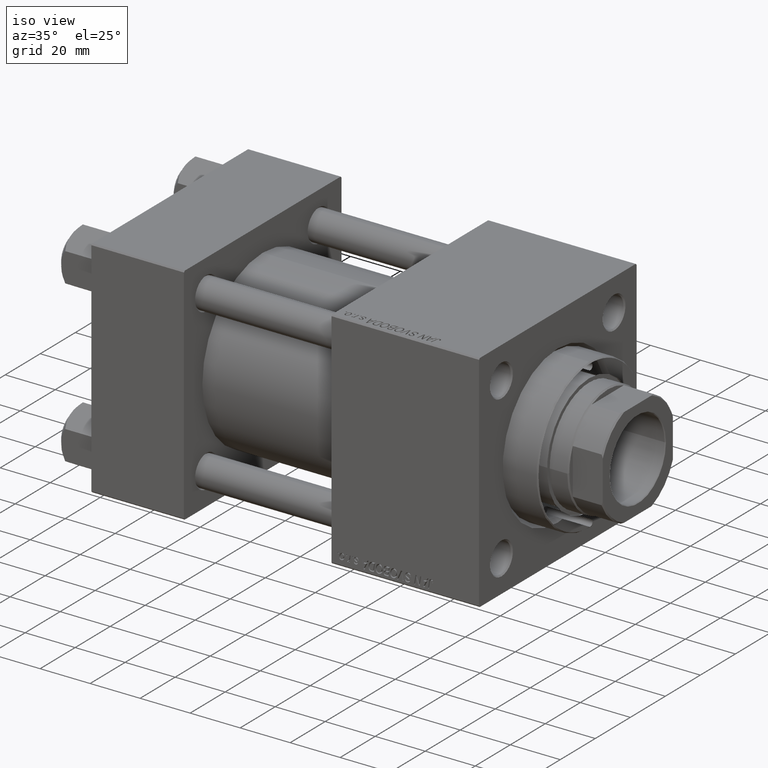
[diagram: clean part render]
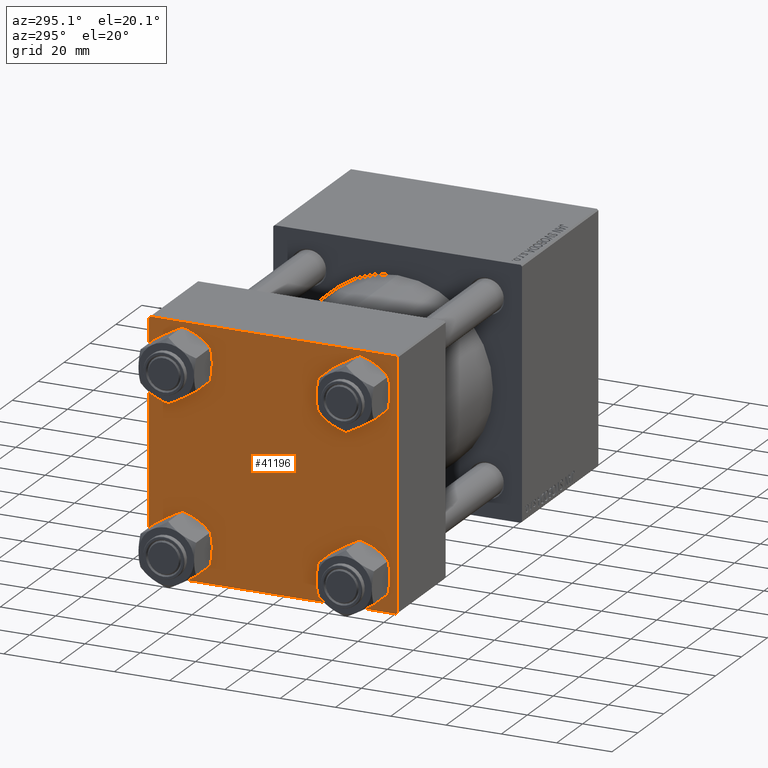
[diagram: tour spotlight — one face highlighted and labeled with its STEP entity id]
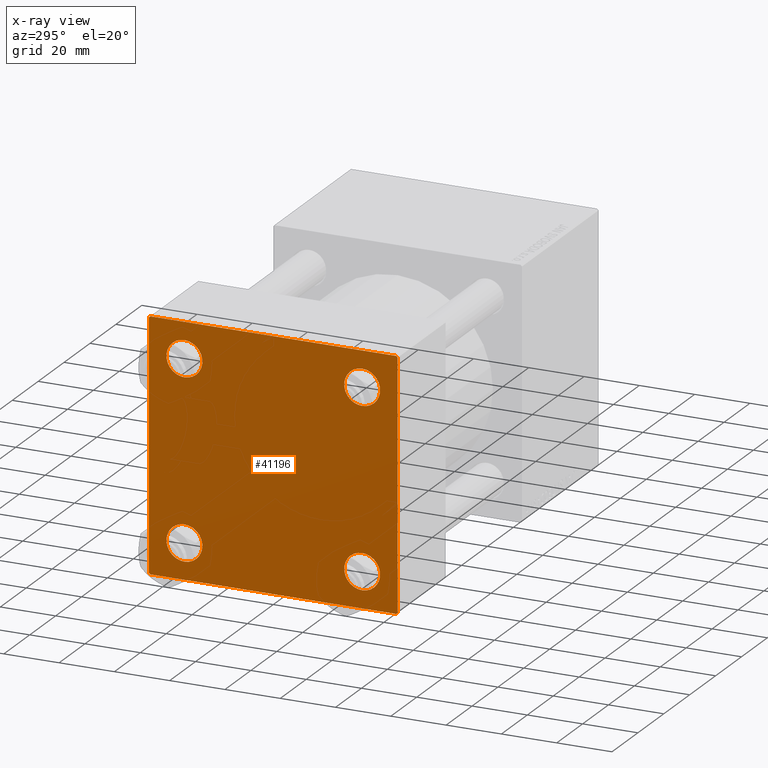
[diagram: x-ray of the same camera — body ghosted, this tour face saturated]
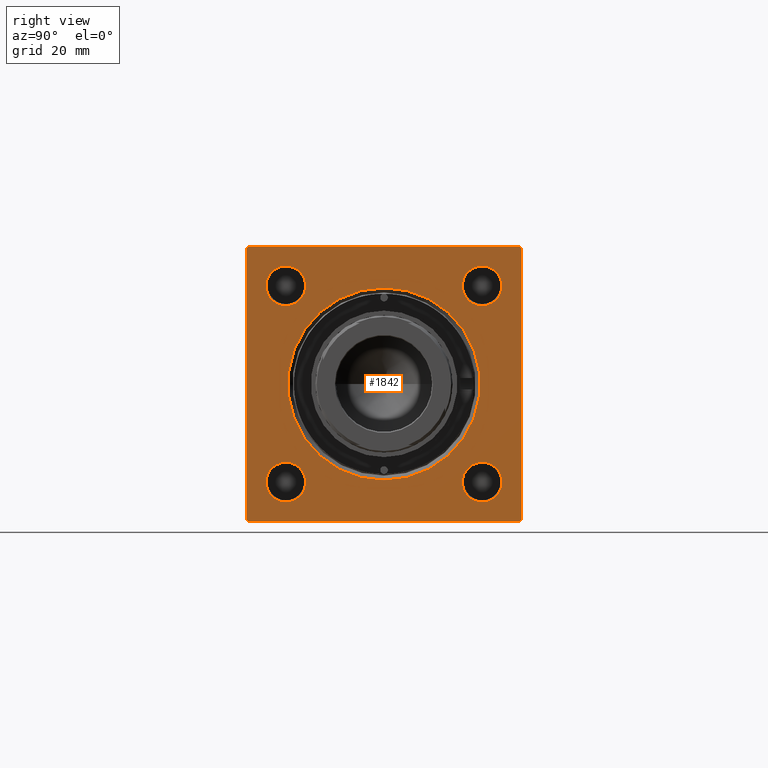
[diagram: tour spotlight — one face highlighted and labeled with its STEP entity id]
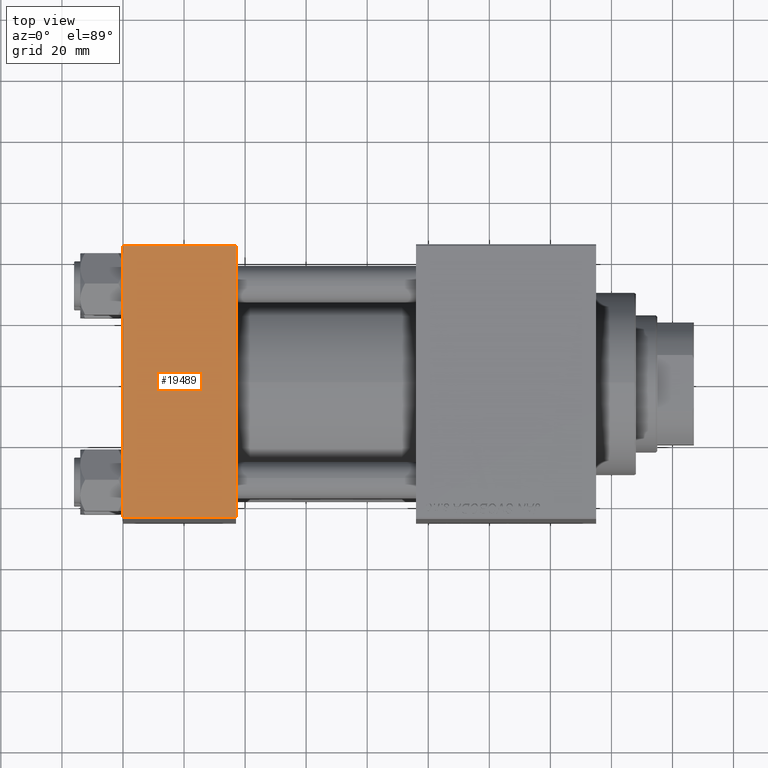
[diagram: tour spotlight — one face highlighted and labeled with its STEP entity id]
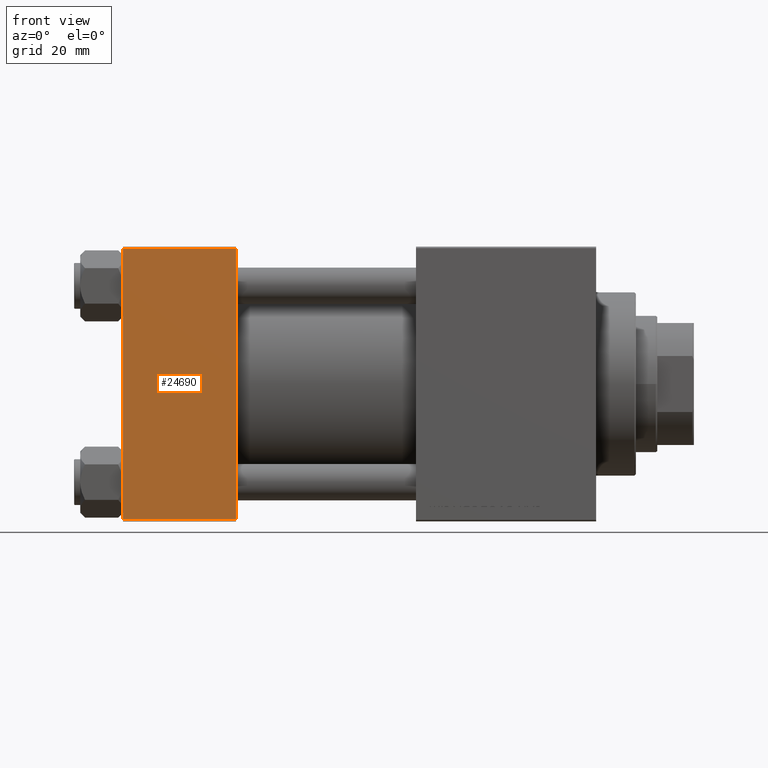
[diagram: tour spotlight — one face highlighted and labeled with its STEP entity id]
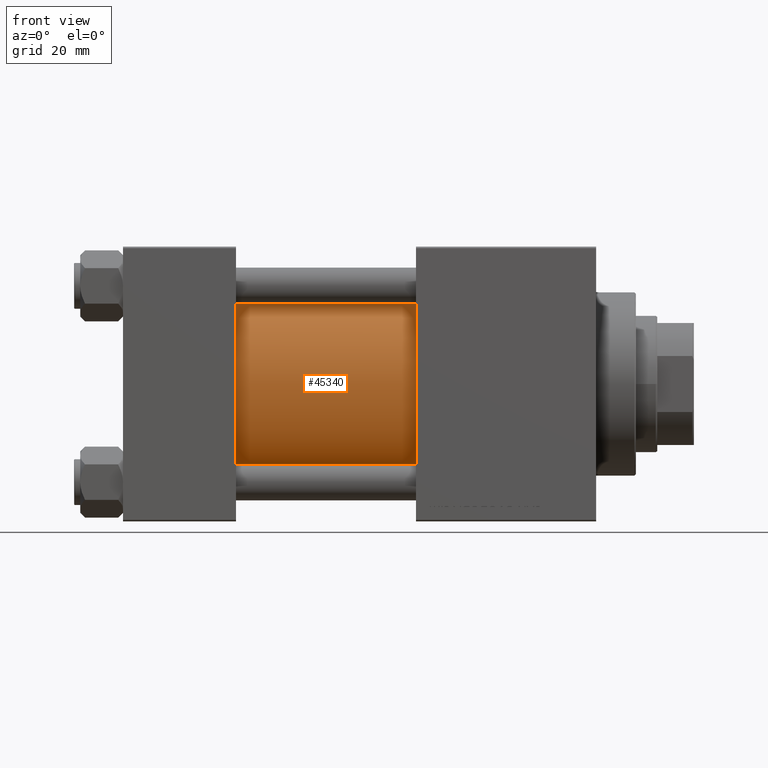
[diagram: tour spotlight — one face highlighted and labeled with its STEP entity id]
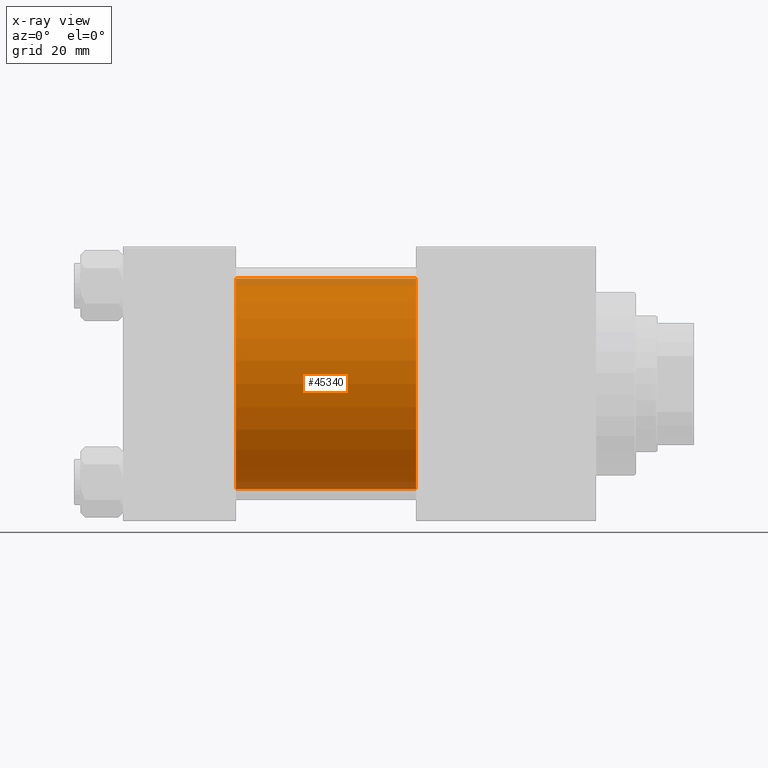
[diagram: x-ray of the same camera — body ghosted, this tour face saturated]
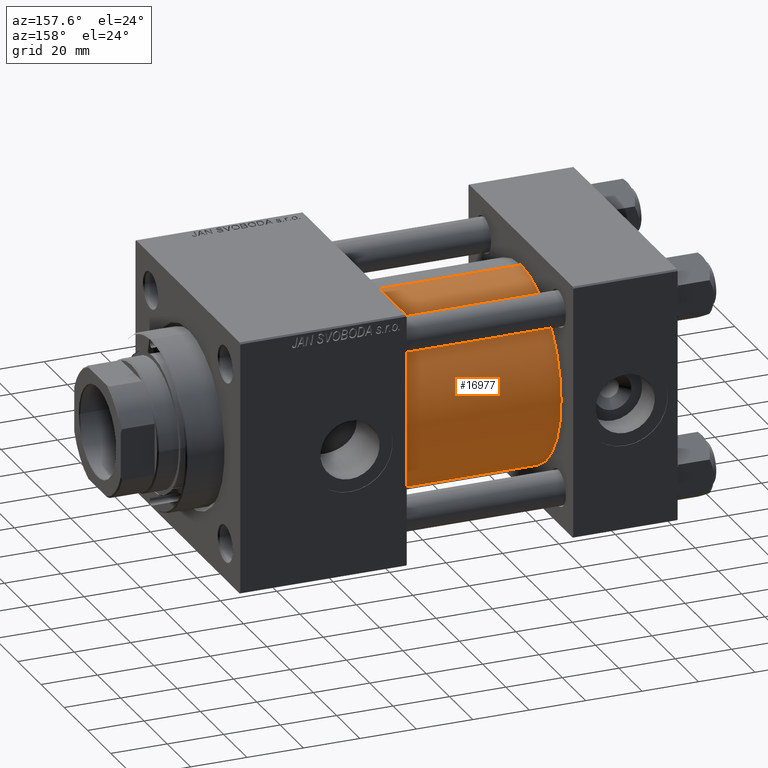
[diagram: tour spotlight — one face highlighted and labeled with its STEP entity id]
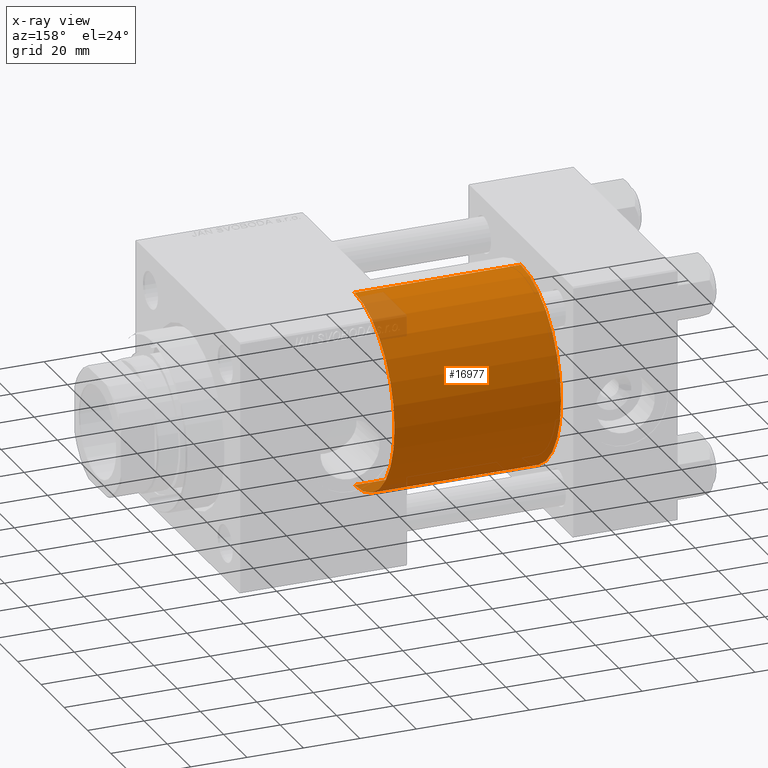
[diagram: x-ray of the same camera — body ghosted, this tour face saturated]
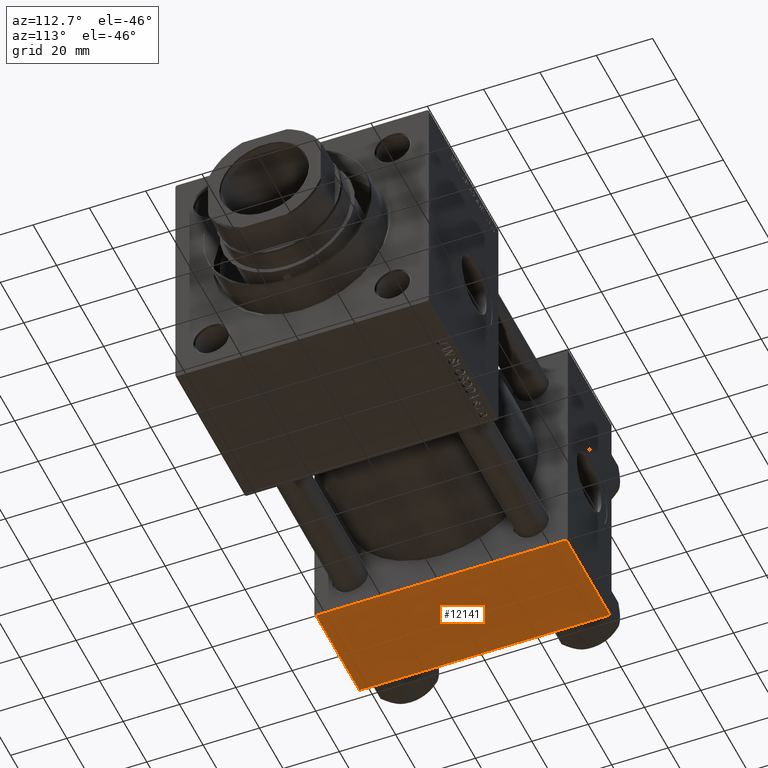
[diagram: tour spotlight — one face highlighted and labeled with its STEP entity id]
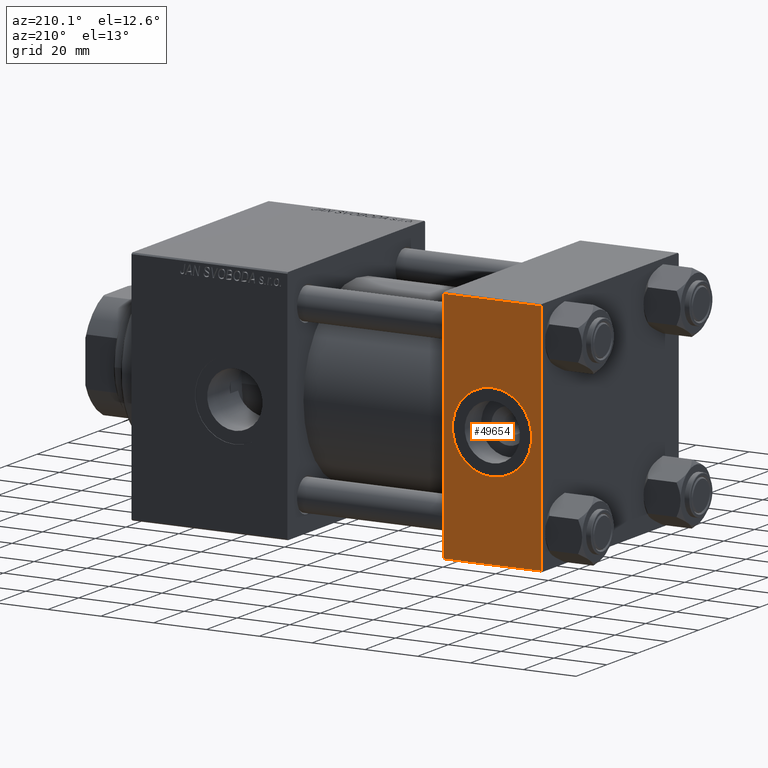
[diagram: tour spotlight — one face highlighted and labeled with its STEP entity id]
A machine part: a face-by-face anatomy tour. The part has 1152 B-rep faces; the first image is the clean iso view, then the 8 largest visible faces are spotlighted one at a time (largest first), each with its STEP entity span.

Face 1 — auxiliary view, entity #41196. An x-ray twin of the same camera follows (body ghosted, this face saturated) — the face is partly hidden behind the body. In plain terms, the highlighted planar face has unit normal (-1, 0, 0).
Definition (entity closure, byte-faithful):
#23 = LINE ( 'NONE', #47331, #1268 ) ;
#238 = EDGE_CURVE ( 'NONE', #5922, #40288, #35894, .T. ) ;
#1268 = VECTOR ( 'NONE', #12478, 1000.000000000000114 ) ;
#1618 = CARTESIAN_POINT ( 'NONE',  ( 0.000000000000000000, 32.14999999999999147, 38.64999999999999147 ) ) ;
#1627 = CARTESIAN_POINT ( 'NONE',  ( 0.000000000000000000, -32.14999999999997726, 32.15000000000001279 ) ) ;
#1804 = CIRCLE ( 'NONE', #6666, 6.499999999999977796 ) ;
#2002 = ORIENTED_EDGE ( 'NONE', *, *, #30368, .T. ) ;
#2063 = DIRECTION ( 'NONE',  ( 0.000000000000000000, -1.000000000000000000, -1.541976423090495387E-16 ) ) ;
#2288 = CIRCLE ( 'NONE', #23413, 6.499999999999977796 ) ;
#2961 = DIRECTION ( 'NONE',  ( 1.000000000000000000, -0.000000000000000000, 0.000000000000000000 ) ) ;
#3282 = ORIENTED_EDGE ( 'NONE', *, *, #36346, .T. ) ;
#3344 = AXIS2_PLACEMENT_3D ( 'NONE', #23732, #31603, #4400 ) ;
#3585 = DIRECTION ( 'NONE',  ( 0.000000000000000000, 0.000000000000000000, 1.000000000000000000 ) ) ;
#4400 = DIRECTION ( 'NONE',  ( 0.000000000000000000, 0.000000000000000000, 1.000000000000000000 ) ) ;
#4701 = EDGE_LOOP ( 'NONE', ( #2002, #26493 ) ) ;
#4949 = VERTEX_POINT ( 'NONE', #25581 ) ;
#5440 = VECTOR ( 'NONE', #21656, 1000.000000000000114 ) ;
#5753 = CIRCLE ( 'NONE', #6547, 6.500000000000019540 ) ;
#5820 = CARTESIAN_POINT ( 'NONE',  ( 0.000000000000000000, -45.00000000000000711, 45.00000000000000000 ) ) ;
#5877 = VERTEX_POINT ( 'NONE', #13332 ) ;
#5899 = CARTESIAN_POINT ( 'NONE',  ( 0.000000000000000000, 44.74999999999998579, -44.74999999999998579 ) ) ;
#5922 = VERTEX_POINT ( 'NONE', #47690 ) ;
#6356 = ORIENTED_EDGE ( 'NONE', *, *, #14846, .T. ) ;
#6547 = AXIS2_PLACEMENT_3D ( 'NONE', #1627, #14066, #17125 ) ;
#6666 = AXIS2_PLACEMENT_3D ( 'NONE', #19088, #30300, #3585 ) ;
#7081 = CARTESIAN_POINT ( 'NONE',  ( 0.000000000000000000, 44.49999999999998579, 45.00000000000001421 ) ) ;
#7195 = DIRECTION ( 'NONE',  ( -0.000000000000000000, 0.000000000000000000, 1.000000000000000000 ) ) ;
#7771 = ORIENTED_EDGE ( 'NONE', *, *, #47663, .T. ) ;
#8069 = DIRECTION ( 'NONE',  ( 1.000000000000000000, -0.000000000000000000, 0.000000000000000000 ) ) ;
#8326 = DIRECTION ( 'NONE',  ( 0.000000000000000000, 0.7071067811865474617, -0.7071067811865474617 ) ) ;
#8570 = EDGE_LOOP ( 'NONE', ( #3282, #43296 ) ) ;
#8891 = EDGE_CURVE ( 'NONE', #40239, #25636, #21558, .T. ) ;
#9794 = VERTEX_POINT ( 'NONE', #7081 ) ;
#11349 = EDGE_CURVE ( 'NONE', #28190, #20135, #17259, .T. ) ;
#11554 = VECTOR ( 'NONE', #17316, 1000.000000000000000 ) ;
#11996 = VECTOR ( 'NONE', #25651, 1000.000000000000000 ) ;
#12119 = VERTEX_POINT ( 'NONE', #46119 ) ;
#12478 = DIRECTION ( 'NONE',  ( 0.000000000000000000, -0.7071067811865474617, 0.7071067811865474617 ) ) ;
#12865 = CARTESIAN_POINT ( 'NONE',  ( 0.000000000000000000, 44.99999999999998579, 44.50000000000001421 ) ) ;
#12870 = CARTESIAN_POINT ( 'NONE',  ( 0.000000000000000000, -32.14999999999997726, 32.15000000000001279 ) ) ;
#12890 = CARTESIAN_POINT ( 'NONE',  ( 0.000000000000000000, 44.74999999999999289, 44.74999999999999289 ) ) ;
#13332 = CARTESIAN_POINT ( 'NONE',  ( 0.000000000000000000, 32.14999999999999147, -25.65000000000002700 ) ) ;
#14066 = DIRECTION ( 'NONE',  ( 1.000000000000000000, -0.000000000000000000, 0.000000000000000000 ) ) ;
#14464 = CARTESIAN_POINT ( 'NONE',  ( 0.000000000000000000, -32.14999999999997726, -38.64999999999999147 ) ) ;
#14637 = AXIS2_PLACEMENT_3D ( 'NONE', #42955, #38378, #27170 ) ;
#14831 = FACE_BOUND ( 'NONE', #26919, .T. ) ;
#14846 = EDGE_CURVE ( 'NONE', #28190, #39656, #40257, .T. ) ;
#16906 = CARTESIAN_POINT ( 'NONE',  ( 0.000000000000000000, -32.14999999999997726, -32.15000000000001279 ) ) ;
#17061 = LINE ( 'NONE', #44049, #11554 ) ;
#17125 = DIRECTION ( 'NONE',  ( 0.000000000000000000, 0.000000000000000000, 1.000000000000000000 ) ) ;
#17259 = LINE ( 'NONE', #5820, #11996 ) ;
#17311 = CARTESIAN_POINT ( 'NONE',  ( 0.000000000000000000, 44.99999999999998579, 45.00000000000001421 ) ) ;
#17316 = DIRECTION ( 'NONE',  ( 0.000000000000000000, 0.000000000000000000, -1.000000000000000000 ) ) ;
#17384 = EDGE_CURVE ( 'NONE', #26082, #33392, #2288, .T. ) ;
#17581 = DIRECTION ( 'NONE',  ( -0.000000000000000000, -0.7071067811865474617, -0.7071067811865474617 ) ) ;
#17993 = AXIS2_PLACEMENT_3D ( 'NONE', #12870, #27889, #46978 ) ;
#19088 = CARTESIAN_POINT ( 'NONE',  ( 0.000000000000000000, 32.14999999999999147, -32.15000000000000568 ) ) ;
#19523 = CARTESIAN_POINT ( 'NONE',  ( 0.000000000000000000, 32.14999999999999147, 25.65000000000002700 ) ) ;
#19659 = DIRECTION ( 'NONE',  ( -1.000000000000000000, 0.000000000000000000, -0.000000000000000000 ) ) ;
#19743 = EDGE_CURVE ( 'NONE', #9794, #39656, #24940, .T. ) ;
#20135 = VERTEX_POINT ( 'NONE', #49419 ) ;
#20654 = CARTESIAN_POINT ( 'NONE',  ( -0.000000000000000000, -44.75000000000029843, 44.74999999999967315 ) ) ;
#20731 = AXIS2_PLACEMENT_3D ( 'NONE', #37568, #2961, #23030 ) ;
#20757 = EDGE_LOOP ( 'NONE', ( #7771, #39555, #27745, #37405, #28895, #6356, #22184, #30505 ) ) ;
#21558 = CIRCLE ( 'NONE', #20731, 6.499999999999977796 ) ;
#21656 = DIRECTION ( 'NONE',  ( -0.000000000000000000, 0.7071067811865425767, 0.7071067811865524577 ) ) ;
#21720 = DIRECTION ( 'NONE',  ( 1.000000000000000000, -0.000000000000000000, 0.000000000000000000 ) ) ;
#22184 = ORIENTED_EDGE ( 'NONE', *, *, #19743, .F. ) ;
#22963 = PLANE ( 'NONE',  #26553 ) ;
#23027 = LINE ( 'NONE', #26829, #47523 ) ;
#23030 = DIRECTION ( 'NONE',  ( 0.000000000000000000, 0.000000000000000000, 1.000000000000000000 ) ) ;
#23413 = AXIS2_PLACEMENT_3D ( 'NONE', #16906, #21720, #44135 ) ;
#23581 = DIRECTION ( 'NONE',  ( 0.000000000000000000, 0.000000000000000000, 1.000000000000000000 ) ) ;
#23732 = CARTESIAN_POINT ( 'NONE',  ( 0.000000000000000000, -32.14999999999997726, -32.15000000000001279 ) ) ;
#24447 = VERTEX_POINT ( 'NONE', #12865 ) ;
#24940 = LINE ( 'NONE', #17311, #34011 ) ;
#25543 = VECTOR ( 'NONE', #17581, 1000.000000000000114 ) ;
#25581 = CARTESIAN_POINT ( 'NONE',  ( 0.000000000000000000, 44.99999999999998579, -44.49999999999995737 ) ) ;
#25636 = VERTEX_POINT ( 'NONE', #1618 ) ;
#25651 = DIRECTION ( 'NONE',  ( 0.000000000000000000, 7.709882115452476934E-17, -1.000000000000000000 ) ) ;
#26082 = VERTEX_POINT ( 'NONE', #30402 ) ;
#26493 = ORIENTED_EDGE ( 'NONE', *, *, #42587, .T. ) ;
#26553 = AXIS2_PLACEMENT_3D ( 'NONE', #38492, #19659, #7195 ) ;
#26829 = CARTESIAN_POINT ( 'NONE',  ( 0.000000000000000000, 44.99999999999998579, -44.99999999999998579 ) ) ;
#26919 = EDGE_LOOP ( 'NONE', ( #42619, #34378 ) ) ;
#27170 = DIRECTION ( 'NONE',  ( 0.000000000000000000, 0.000000000000000000, 1.000000000000000000 ) ) ;
#27543 = FACE_BOUND ( 'NONE', #33829, .T. ) ;
#27745 = ORIENTED_EDGE ( 'NONE', *, *, #37240, .T. ) ;
#27889 = DIRECTION ( 'NONE',  ( 1.000000000000000000, -0.000000000000000000, 0.000000000000000000 ) ) ;
#28190 = VERTEX_POINT ( 'NONE', #48331 ) ;
#28442 = CIRCLE ( 'NONE', #14637, 6.499999999999977796 ) ;
#28895 = ORIENTED_EDGE ( 'NONE', *, *, #11349, .F. ) ;
#30300 = DIRECTION ( 'NONE',  ( 1.000000000000000000, -0.000000000000000000, 0.000000000000000000 ) ) ;
#30368 = EDGE_CURVE ( 'NONE', #5877, #37884, #1804, .T. ) ;
#30402 = CARTESIAN_POINT ( 'NONE',  ( 0.000000000000000000, -32.14999999999997726, -25.65000000000003411 ) ) ;
#30505 = ORIENTED_EDGE ( 'NONE', *, *, #44900, .T. ) ;
#31119 = FACE_BOUND ( 'NONE', #8570, .T. ) ;
#31603 = DIRECTION ( 'NONE',  ( 1.000000000000000000, -0.000000000000000000, 0.000000000000000000 ) ) ;
#32415 = ORIENTED_EDGE ( 'NONE', *, *, #238, .T. ) ;
#33392 = VERTEX_POINT ( 'NONE', #14464 ) ;
#33829 = EDGE_LOOP ( 'NONE', ( #47351, #32415 ) ) ;
#34011 = VECTOR ( 'NONE', #2063, 1000.000000000000000 ) ;
#34378 = ORIENTED_EDGE ( 'NONE', *, *, #45483, .T. ) ;
#35104 = CARTESIAN_POINT ( 'NONE',  ( 0.000000000000000000, 32.14999999999999147, -38.64999999999998437 ) ) ;
#35252 = CARTESIAN_POINT ( 'NONE',  ( 0.000000000000000000, 44.49999999999998579, -44.99999999999998579 ) ) ;
#35286 = CIRCLE ( 'NONE', #36915, 6.499999999999977796 ) ;
#35894 = CIRCLE ( 'NONE', #17993, 6.500000000000019540 ) ;
#36346 = EDGE_CURVE ( 'NONE', #25636, #40239, #35286, .T. ) ;
#36768 = EDGE_CURVE ( 'NONE', #4949, #49403, #40750, .T. ) ;
#36915 = AXIS2_PLACEMENT_3D ( 'NONE', #40129, #8069, #23581 ) ;
#37235 = CARTESIAN_POINT ( 'NONE',  ( 0.000000000000000000, -32.14999999999997726, 38.65000000000003411 ) ) ;
#37240 = EDGE_CURVE ( 'NONE', #49403, #12119, #23027, .T. ) ;
#37405 = ORIENTED_EDGE ( 'NONE', *, *, #39920, .T. ) ;
#37568 = CARTESIAN_POINT ( 'NONE',  ( 0.000000000000000000, 32.14999999999999147, 32.15000000000000568 ) ) ;
#37884 = VERTEX_POINT ( 'NONE', #35104 ) ;
#38378 = DIRECTION ( 'NONE',  ( 1.000000000000000000, -0.000000000000000000, 0.000000000000000000 ) ) ;
#38492 = CARTESIAN_POINT ( 'NONE',  ( 0.000000000000000000, 0.000000000000000000, 0.000000000000000000 ) ) ;
#39508 = CARTESIAN_POINT ( 'NONE',  ( 0.000000000000000000, -44.49999999999995737, 45.00000000000000000 ) ) ;
#39555 = ORIENTED_EDGE ( 'NONE', *, *, #36768, .T. ) ;
#39656 = VERTEX_POINT ( 'NONE', #39508 ) ;
#39920 = EDGE_CURVE ( 'NONE', #12119, #20135, #23, .T. ) ;
#40129 = CARTESIAN_POINT ( 'NONE',  ( 0.000000000000000000, 32.14999999999999147, 32.15000000000000568 ) ) ;
#40239 = VERTEX_POINT ( 'NONE', #19523 ) ;
#40257 = LINE ( 'NONE', #20654, #5440 ) ;
#40288 = VERTEX_POINT ( 'NONE', #37235 ) ;
#40750 = LINE ( 'NONE', #5899, #25543 ) ;
#41196 = ADVANCED_FACE ( 'NONE', ( #27543, #14831, #42304, #31119, #49941 ), #22963, .T. ) ;
#42304 = FACE_BOUND ( 'NONE', #4701, .T. ) ;
#42374 = DIRECTION ( 'NONE',  ( 0.000000000000000000, -1.000000000000000000, -1.541976423090495633E-16 ) ) ;
#42587 = EDGE_CURVE ( 'NONE', #37884, #5877, #28442, .T. ) ;
#42619 = ORIENTED_EDGE ( 'NONE', *, *, #17384, .T. ) ;
#42955 = CARTESIAN_POINT ( 'NONE',  ( 0.000000000000000000, 32.14999999999999147, -32.15000000000000568 ) ) ;
#43160 = VECTOR ( 'NONE', #8326, 1000.000000000000114 ) ;
#43181 = LINE ( 'NONE', #12890, #43160 ) ;
#43296 = ORIENTED_EDGE ( 'NONE', *, *, #8891, .T. ) ;
#44049 = CARTESIAN_POINT ( 'NONE',  ( 0.000000000000000000, 44.99999999999998579, 45.00000000000001421 ) ) ;
#44135 = DIRECTION ( 'NONE',  ( 0.000000000000000000, 0.000000000000000000, 1.000000000000000000 ) ) ;
#44269 = EDGE_CURVE ( 'NONE', #40288, #5922, #5753, .T. ) ;
#44900 = EDGE_CURVE ( 'NONE', #9794, #24447, #43181, .T. ) ;
#45483 = EDGE_CURVE ( 'NONE', #33392, #26082, #45589, .T. ) ;
#45589 = CIRCLE ( 'NONE', #3344, 6.499999999999977796 ) ;
#46119 = CARTESIAN_POINT ( 'NONE',  ( 0.000000000000000000, -44.49999999999995737, -45.00000000000000000 ) ) ;
#46978 = DIRECTION ( 'NONE',  ( 0.000000000000000000, 0.000000000000000000, 1.000000000000000000 ) ) ;
#47331 = CARTESIAN_POINT ( 'NONE',  ( 0.000000000000000000, -44.74999999999998579, -44.74999999999998579 ) ) ;
#47351 = ORIENTED_EDGE ( 'NONE', *, *, #44269, .T. ) ;
#47523 = VECTOR ( 'NONE', #42374, 1000.000000000000000 ) ;
#47663 = EDGE_CURVE ( 'NONE', #24447, #4949, #17061, .T. ) ;
#47690 = CARTESIAN_POINT ( 'NONE',  ( 0.000000000000000000, -32.14999999999997726, 25.64999999999999147 ) ) ;
#48331 = CARTESIAN_POINT ( 'NONE',  ( 0.000000000000000000, -45.00000000000000711, 44.49999999999997158 ) ) ;
#49403 = VERTEX_POINT ( 'NONE', #35252 ) ;
#49419 = CARTESIAN_POINT ( 'NONE',  ( 0.000000000000000000, -45.00000000000000000, -44.49999999999995737 ) ) ;
#49941 = FACE_OUTER_BOUND ( 'NONE', #20757, .T. ) ;

Face 2 — right view, entity #1842. In plain terms, the highlighted planar face has unit normal (-1, 0, 0).
Definition (entity closure, byte-faithful):
#251 = VERTEX_POINT ( 'NONE', #31693 ) ;
#911 = CIRCLE ( 'NONE', #9815, 6.500000000000033751 ) ;
#1021 = AXIS2_PLACEMENT_3D ( 'NONE', #27492, #11735, #23422 ) ;
#1131 = VERTEX_POINT ( 'NONE', #8577 ) ;
#1674 = LINE ( 'NONE', #16681, #27752 ) ;
#1842 = ADVANCED_FACE ( 'NONE', ( #32632, #32142, #47900, #36463, #13298, #39531 ), #4674, .F. ) ;
#2140 = LINE ( 'NONE', #10770, #20907 ) ;
#2641 = CARTESIAN_POINT ( 'NONE',  ( 155.0000000000000000, 32.14999999999999147, 25.64999999999997726 ) ) ;
#3061 = VERTEX_POINT ( 'NONE', #18318 ) ;
#3217 = LINE ( 'NONE', #14419, #6417 ) ;
#3336 = DIRECTION ( 'NONE',  ( -1.000000000000000000, -0.000000000000000000, -0.000000000000000000 ) ) ;
#3640 = CARTESIAN_POINT ( 'NONE',  ( 155.0000000000000000, 32.14999999999999147, -38.65000000000004832 ) ) ;
#4011 = DIRECTION ( 'NONE',  ( 0.000000000000000000, 0.000000000000000000, 1.000000000000000000 ) ) ;
#4155 = AXIS2_PLACEMENT_3D ( 'NONE', #40063, #9016, #24530 ) ;
#4674 = PLANE ( 'NONE',  #42404 ) ;
#4840 = CARTESIAN_POINT ( 'NONE',  ( 155.0000000000000000, 44.50000000000001421, -45.00000000000000000 ) ) ;
#5059 = EDGE_LOOP ( 'NONE', ( #29821, #46744 ) ) ;
#5180 = CARTESIAN_POINT ( 'NONE',  ( 155.0000000000000000, 0.000000000000000000, 0.000000000000000000 ) ) ;
#5501 = CARTESIAN_POINT ( 'NONE',  ( 155.0000000000000000, 0.000000000000000000, 0.000000000000000000 ) ) ;
#5688 = DIRECTION ( 'NONE',  ( 0.000000000000000000, 0.7071067811865524577, -0.7071067811865426878 ) ) ;
#5733 = DIRECTION ( 'NONE',  ( 0.000000000000000000, -0.7071067811865474617, 0.7071067811865474617 ) ) ;
#5791 = CIRCLE ( 'NONE', #4155, 6.500000000000033751 ) ;
#6008 = EDGE_CURVE ( 'NONE', #37088, #10511, #30091, .T. ) ;
#6417 = VECTOR ( 'NONE', #29701, 1000.000000000000000 ) ;
#6520 = CARTESIAN_POINT ( 'NONE',  ( 155.0000000000000000, 45.00000000000001421, 45.00000000000000000 ) ) ;
#6530 = VECTOR ( 'NONE', #28982, 1000.000000000000000 ) ;
#6895 = CARTESIAN_POINT ( 'NONE',  ( 155.0000000000000000, 32.14999999999999147, -32.15000000000000568 ) ) ;
#7150 = EDGE_CURVE ( 'NONE', #3061, #11997, #27999, .T. ) ;
#7233 = DIRECTION ( 'NONE',  ( 0.000000000000000000, 0.000000000000000000, 1.000000000000000000 ) ) ;
#7493 = CARTESIAN_POINT ( 'NONE',  ( 155.0000000000000000, 32.14999999999999147, -32.15000000000000568 ) ) ;
#7579 = DIRECTION ( 'NONE',  ( -1.000000000000000000, -0.000000000000000000, -0.000000000000000000 ) ) ;
#8275 = CARTESIAN_POINT ( 'NONE',  ( 155.0000000000000000, 0.000000000000000000, -31.50000000000000000 ) ) ;
#8417 = AXIS2_PLACEMENT_3D ( 'NONE', #37193, #3336, #14530 ) ;
#8577 = CARTESIAN_POINT ( 'NONE',  ( 155.0000000000000000, 3.857637417314162689E-15, 31.50000000000000000 ) ) ;
#9016 = DIRECTION ( 'NONE',  ( -1.000000000000000000, -0.000000000000000000, -0.000000000000000000 ) ) ;
#9031 = AXIS2_PLACEMENT_3D ( 'NONE', #6895, #34620, #38677 ) ;
#9815 = AXIS2_PLACEMENT_3D ( 'NONE', #7493, #45672, #7233 ) ;
#10131 = CARTESIAN_POINT ( 'NONE',  ( 155.0000000000000000, -44.49999999999994316, 44.99999999999998579 ) ) ;
#10511 = VERTEX_POINT ( 'NONE', #44660 ) ;
#10770 = CARTESIAN_POINT ( 'NONE',  ( 155.0000000000000000, -45.00000000000000000, 44.49999999999995737 ) ) ;
#11129 = LINE ( 'NONE', #34283, #20919 ) ;
#11561 = ORIENTED_EDGE ( 'NONE', *, *, #44270, .T. ) ;
#11606 = EDGE_CURVE ( 'NONE', #37088, #14669, #11129, .T. ) ;
#11671 = AXIS2_PLACEMENT_3D ( 'NONE', #5501, #21007, #33471 ) ;
#11735 = DIRECTION ( 'NONE',  ( -1.000000000000000000, -0.000000000000000000, -0.000000000000000000 ) ) ;
#11997 = VERTEX_POINT ( 'NONE', #2641 ) ;
#12075 = VERTEX_POINT ( 'NONE', #38989 ) ;
#12104 = ORIENTED_EDGE ( 'NONE', *, *, #18859, .F. ) ;
#12296 = ORIENTED_EDGE ( 'NONE', *, *, #40337, .T. ) ;
#12363 = AXIS2_PLACEMENT_3D ( 'NONE', #43494, #16760, #20318 ) ;
#12368 = EDGE_CURVE ( 'NONE', #45971, #48645, #20745, .T. ) ;
#12926 = ORIENTED_EDGE ( 'NONE', *, *, #17264, .T. ) ;
#13298 = FACE_BOUND ( 'NONE', #15997, .T. ) ;
#13356 = AXIS2_PLACEMENT_3D ( 'NONE', #20910, #24235, #39762 ) ;
#13887 = CARTESIAN_POINT ( 'NONE',  ( 155.0000000000000000, -44.49999999999990052, -45.00000000000000000 ) ) ;
#14378 = ORIENTED_EDGE ( 'NONE', *, *, #11606, .F. ) ;
#14419 = CARTESIAN_POINT ( 'NONE',  ( 155.0000000000000000, 45.00000000000001421, 45.00000000000000000 ) ) ;
#14530 = DIRECTION ( 'NONE',  ( 0.000000000000000000, 0.000000000000000000, 1.000000000000000000 ) ) ;
#14669 = VERTEX_POINT ( 'NONE', #13887 ) ;
#15997 = EDGE_LOOP ( 'NONE', ( #43799, #21747 ) ) ;
#16681 = CARTESIAN_POINT ( 'NONE',  ( 155.0000000000000000, 44.49999999999998579, 45.00000000000000000 ) ) ;
#16760 = DIRECTION ( 'NONE',  ( -1.000000000000000000, -0.000000000000000000, -0.000000000000000000 ) ) ;
#16796 = ORIENTED_EDGE ( 'NONE', *, *, #45651, .T. ) ;
#16914 = VECTOR ( 'NONE', #37562, 1000.000000000000000 ) ;
#17264 = EDGE_CURVE ( 'NONE', #28379, #43541, #22030, .T. ) ;
#17887 = CARTESIAN_POINT ( 'NONE',  ( 155.0000000000000000, 45.00000000000001421, -44.50000000000000000 ) ) ;
#17974 = VERTEX_POINT ( 'NONE', #38561 ) ;
#18029 = CIRCLE ( 'NONE', #46466, 31.50000000000000000 ) ;
#18318 = CARTESIAN_POINT ( 'NONE',  ( 155.0000000000000000, 32.14999999999999147, 38.65000000000003411 ) ) ;
#18859 = EDGE_CURVE ( 'NONE', #251, #10511, #3217, .T. ) ;
#19714 = VERTEX_POINT ( 'NONE', #44788 ) ;
#20186 = ORIENTED_EDGE ( 'NONE', *, *, #34251, .T. ) ;
#20318 = DIRECTION ( 'NONE',  ( 0.000000000000000000, 0.000000000000000000, 1.000000000000000000 ) ) ;
#20745 = CIRCLE ( 'NONE', #32912, 6.500000000000033751 ) ;
#20907 = VECTOR ( 'NONE', #25531, 1000.000000000000114 ) ;
#20910 = CARTESIAN_POINT ( 'NONE',  ( 155.0000000000000000, 32.14999999999999147, 32.15000000000000568 ) ) ;
#20919 = VECTOR ( 'NONE', #49800, 1000.000000000000000 ) ;
#21007 = DIRECTION ( 'NONE',  ( -1.000000000000000000, -0.000000000000000000, -0.000000000000000000 ) ) ;
#21747 = ORIENTED_EDGE ( 'NONE', *, *, #30818, .T. ) ;
#22030 = LINE ( 'NONE', #6520, #16914 ) ;
#22504 = CARTESIAN_POINT ( 'NONE',  ( 155.0000000000000000, -32.14999999999999147, 38.65000000000002700 ) ) ;
#22534 = ORIENTED_EDGE ( 'NONE', *, *, #6008, .T. ) ;
#22574 = EDGE_CURVE ( 'NONE', #19714, #46980, #44261, .T. ) ;
#23422 = DIRECTION ( 'NONE',  ( 0.000000000000000000, 0.000000000000000000, 1.000000000000000000 ) ) ;
#23843 = CIRCLE ( 'NONE', #8417, 6.500000000000026645 ) ;
#23876 = ORIENTED_EDGE ( 'NONE', *, *, #7150, .T. ) ;
#24235 = DIRECTION ( 'NONE',  ( -1.000000000000000000, -0.000000000000000000, -0.000000000000000000 ) ) ;
#24530 = DIRECTION ( 'NONE',  ( 0.000000000000000000, 0.000000000000000000, 1.000000000000000000 ) ) ;
#24564 = CIRCLE ( 'NONE', #12363, 6.500000000000033751 ) ;
#24749 = DIRECTION ( 'NONE',  ( -1.000000000000000000, 0.000000000000000000, -0.000000000000000000 ) ) ;
#25108 = DIRECTION ( 'NONE',  ( 0.000000000000000000, 0.000000000000000000, 1.000000000000000000 ) ) ;
#25531 = DIRECTION ( 'NONE',  ( -0.000000000000000000, -0.7071067811865474617, -0.7071067811865474617 ) ) ;
#26407 = CARTESIAN_POINT ( 'NONE',  ( 155.0000000000000000, -32.14999999999999147, 32.14999999999999147 ) ) ;
#27492 = CARTESIAN_POINT ( 'NONE',  ( 155.0000000000000000, -32.15000000000001279, -32.15000000000000568 ) ) ;
#27565 = EDGE_LOOP ( 'NONE', ( #16796, #45791 ) ) ;
#27752 = VECTOR ( 'NONE', #5733, 1000.000000000000114 ) ;
#27999 = CIRCLE ( 'NONE', #13356, 6.500000000000026645 ) ;
#28379 = VERTEX_POINT ( 'NONE', #42958 ) ;
#28684 = CARTESIAN_POINT ( 'NONE',  ( 155.0000000000000000, 0.000000000000000000, 0.000000000000000000 ) ) ;
#28825 = EDGE_LOOP ( 'NONE', ( #29060, #36412 ) ) ;
#28982 = DIRECTION ( 'NONE',  ( 0.000000000000000000, 7.709882115452478166E-17, -1.000000000000000000 ) ) ;
#29060 = ORIENTED_EDGE ( 'NONE', *, *, #12368, .T. ) ;
#29600 = DIRECTION ( 'NONE',  ( -0.000000000000000000, 0.7071067811865474617, 0.7071067811865474617 ) ) ;
#29701 = DIRECTION ( 'NONE',  ( 0.000000000000000000, 0.000000000000000000, -1.000000000000000000 ) ) ;
#29821 = ORIENTED_EDGE ( 'NONE', *, *, #31314, .T. ) ;
#29984 = CARTESIAN_POINT ( 'NONE',  ( 155.0000000000000000, -32.14999999999999147, 25.64999999999995595 ) ) ;
#30091 = LINE ( 'NONE', #17887, #42569 ) ;
#30293 = CARTESIAN_POINT ( 'NONE',  ( 155.0000000000000000, -32.15000000000001279, -38.65000000000004832 ) ) ;
#30757 = CARTESIAN_POINT ( 'NONE',  ( 155.0000000000000000, -44.99999999999999289, -44.49999999999991473 ) ) ;
#30818 = EDGE_CURVE ( 'NONE', #1131, #49471, #18029, .T. ) ;
#31314 = EDGE_CURVE ( 'NONE', #45802, #17974, #49765, .T. ) ;
#31693 = CARTESIAN_POINT ( 'NONE',  ( 155.0000000000000000, 45.00000000000001421, 44.49999999999997158 ) ) ;
#32142 = FACE_BOUND ( 'NONE', #28825, .T. ) ;
#32632 = FACE_BOUND ( 'NONE', #41850, .T. ) ;
#32912 = AXIS2_PLACEMENT_3D ( 'NONE', #26407, #7579, #4011 ) ;
#33471 = DIRECTION ( 'NONE',  ( 0.000000000000000000, 0.000000000000000000, 1.000000000000000000 ) ) ;
#34251 = EDGE_CURVE ( 'NONE', #11997, #3061, #23843, .T. ) ;
#34283 = CARTESIAN_POINT ( 'NONE',  ( 155.0000000000000000, 45.00000000000001421, -45.00000000000000000 ) ) ;
#34620 = DIRECTION ( 'NONE',  ( -1.000000000000000000, -0.000000000000000000, -0.000000000000000000 ) ) ;
#35594 = EDGE_CURVE ( 'NONE', #49471, #1131, #44184, .T. ) ;
#35714 = DIRECTION ( 'NONE',  ( -0.000000000000000000, 0.000000000000000000, 1.000000000000000000 ) ) ;
#36412 = ORIENTED_EDGE ( 'NONE', *, *, #47925, .T. ) ;
#36463 = FACE_BOUND ( 'NONE', #27565, .T. ) ;
#37088 = VERTEX_POINT ( 'NONE', #4840 ) ;
#37193 = CARTESIAN_POINT ( 'NONE',  ( 155.0000000000000000, 32.14999999999999147, 32.15000000000000568 ) ) ;
#37494 = CIRCLE ( 'NONE', #9031, 6.500000000000033751 ) ;
#37562 = DIRECTION ( 'NONE',  ( 0.000000000000000000, -1.000000000000000000, -1.541976423090495140E-16 ) ) ;
#37768 = EDGE_LOOP ( 'NONE', ( #49845, #11561, #14378, #22534, #12104, #47038, #12926, #12296 ) ) ;
#38561 = CARTESIAN_POINT ( 'NONE',  ( 155.0000000000000000, -32.15000000000001279, -25.64999999999997016 ) ) ;
#38677 = DIRECTION ( 'NONE',  ( 0.000000000000000000, 0.000000000000000000, 1.000000000000000000 ) ) ;
#38989 = CARTESIAN_POINT ( 'NONE',  ( 155.0000000000000000, 32.14999999999999147, -25.64999999999997016 ) ) ;
#39531 = FACE_OUTER_BOUND ( 'NONE', #37768, .T. ) ;
#39762 = DIRECTION ( 'NONE',  ( 0.000000000000000000, 0.000000000000000000, 1.000000000000000000 ) ) ;
#40063 = CARTESIAN_POINT ( 'NONE',  ( 155.0000000000000000, -32.15000000000001279, -32.15000000000000568 ) ) ;
#40148 = DIRECTION ( 'NONE',  ( -1.000000000000000000, -0.000000000000000000, -0.000000000000000000 ) ) ;
#40337 = EDGE_CURVE ( 'NONE', #43541, #19714, #2140, .T. ) ;
#40547 = LINE ( 'NONE', #44366, #47980 ) ;
#41224 = VERTEX_POINT ( 'NONE', #3640 ) ;
#41850 = EDGE_LOOP ( 'NONE', ( #20186, #23876 ) ) ;
#42404 = AXIS2_PLACEMENT_3D ( 'NONE', #5180, #24749, #35714 ) ;
#42569 = VECTOR ( 'NONE', #29600, 1000.000000000000114 ) ;
#42958 = CARTESIAN_POINT ( 'NONE',  ( 155.0000000000000000, 44.49999999999998579, 45.00000000000000000 ) ) ;
#43494 = CARTESIAN_POINT ( 'NONE',  ( 155.0000000000000000, -32.14999999999999147, 32.14999999999999147 ) ) ;
#43541 = VERTEX_POINT ( 'NONE', #10131 ) ;
#43799 = ORIENTED_EDGE ( 'NONE', *, *, #35594, .T. ) ;
#44004 = EDGE_CURVE ( 'NONE', #12075, #41224, #911, .T. ) ;
#44009 = CARTESIAN_POINT ( 'NONE',  ( 155.0000000000000000, -45.00000000000000000, 44.99999999999998579 ) ) ;
#44184 = CIRCLE ( 'NONE', #11671, 31.50000000000000000 ) ;
#44261 = LINE ( 'NONE', #44009, #6530 ) ;
#44270 = EDGE_CURVE ( 'NONE', #46980, #14669, #40547, .T. ) ;
#44366 = CARTESIAN_POINT ( 'NONE',  ( 155.0000000000000000, -44.49999999999992895, -45.00000000000000000 ) ) ;
#44660 = CARTESIAN_POINT ( 'NONE',  ( 155.0000000000000000, 45.00000000000001421, -44.49999999999997158 ) ) ;
#44788 = CARTESIAN_POINT ( 'NONE',  ( 155.0000000000000000, -45.00000000000000000, 44.49999999999995737 ) ) ;
#45651 = EDGE_CURVE ( 'NONE', #41224, #12075, #37494, .T. ) ;
#45672 = DIRECTION ( 'NONE',  ( -1.000000000000000000, -0.000000000000000000, -0.000000000000000000 ) ) ;
#45791 = ORIENTED_EDGE ( 'NONE', *, *, #44004, .T. ) ;
#45802 = VERTEX_POINT ( 'NONE', #30293 ) ;
#45971 = VERTEX_POINT ( 'NONE', #29984 ) ;
#46397 = EDGE_CURVE ( 'NONE', #251, #28379, #1674, .T. ) ;
#46466 = AXIS2_PLACEMENT_3D ( 'NONE', #28684, #40148, #25108 ) ;
#46744 = ORIENTED_EDGE ( 'NONE', *, *, #48683, .T. ) ;
#46980 = VERTEX_POINT ( 'NONE', #30757 ) ;
#47038 = ORIENTED_EDGE ( 'NONE', *, *, #46397, .T. ) ;
#47900 = FACE_BOUND ( 'NONE', #5059, .T. ) ;
#47925 = EDGE_CURVE ( 'NONE', #48645, #45971, #24564, .T. ) ;
#47980 = VECTOR ( 'NONE', #5688, 1000.000000000000000 ) ;
#48645 = VERTEX_POINT ( 'NONE', #22504 ) ;
#48683 = EDGE_CURVE ( 'NONE', #17974, #45802, #5791, .T. ) ;
#49471 = VERTEX_POINT ( 'NONE', #8275 ) ;
#49765 = CIRCLE ( 'NONE', #1021, 6.500000000000033751 ) ;
#49800 = DIRECTION ( 'NONE',  ( 0.000000000000000000, -1.000000000000000000, 0.000000000000000000 ) ) ;
#49845 = ORIENTED_EDGE ( 'NONE', *, *, #22574, .T. ) ;

Face 3 — top view, entity #19489. In plain terms, the highlighted planar face has unit normal (0, 0, -1).
Definition (entity closure, byte-faithful):
#847 = LINE ( 'NONE', #27794, #4526 ) ;
#2063 = DIRECTION ( 'NONE',  ( 0.000000000000000000, -1.000000000000000000, -1.541976423090495387E-16 ) ) ;
#2981 = CARTESIAN_POINT ( 'NONE',  ( 37.00000000000000000, -44.49999999999998579, 45.00000000000000000 ) ) ;
#4526 = VECTOR ( 'NONE', #16337, 1000.000000000000000 ) ;
#6815 = ORIENTED_EDGE ( 'NONE', *, *, #22948, .T. ) ;
#7081 = CARTESIAN_POINT ( 'NONE',  ( 0.000000000000000000, 44.49999999999998579, 45.00000000000001421 ) ) ;
#7202 = AXIS2_PLACEMENT_3D ( 'NONE', #15290, #41785, #7939 ) ;
#7939 = DIRECTION ( 'NONE',  ( 0.000000000000000000, 1.000000000000000000, 1.541976423090495633E-16 ) ) ;
#9794 = VERTEX_POINT ( 'NONE', #7081 ) ;
#10589 = CARTESIAN_POINT ( 'NONE',  ( 0.000000000000000000, 44.49999999999998579, 45.00000000000001421 ) ) ;
#11087 = DIRECTION ( 'NONE',  ( -1.000000000000000000, 0.000000000000000000, 0.000000000000000000 ) ) ;
#15290 = CARTESIAN_POINT ( 'NONE',  ( 37.00000000000000000, 44.99999999999998579, 45.00000000000001421 ) ) ;
#16337 = DIRECTION ( 'NONE',  ( 0.000000000000000000, -1.000000000000000000, -1.541976423090495387E-16 ) ) ;
#17311 = CARTESIAN_POINT ( 'NONE',  ( 0.000000000000000000, 44.99999999999998579, 45.00000000000001421 ) ) ;
#19489 = ADVANCED_FACE ( 'NONE', ( #30069 ), #23189, .F. ) ;
#19743 = EDGE_CURVE ( 'NONE', #9794, #39656, #24940, .T. ) ;
#19817 = CARTESIAN_POINT ( 'NONE',  ( 37.00000000000000000, -44.49999999999995737, 45.00000000000000000 ) ) ;
#22305 = LINE ( 'NONE', #2981, #45629 ) ;
#22948 = EDGE_CURVE ( 'NONE', #29093, #9794, #37567, .T. ) ;
#23189 = PLANE ( 'NONE',  #7202 ) ;
#23376 = ORIENTED_EDGE ( 'NONE', *, *, #46206, .T. ) ;
#24940 = LINE ( 'NONE', #17311, #34011 ) ;
#27794 = CARTESIAN_POINT ( 'NONE',  ( 37.00000000000000000, 44.99999999999998579, 45.00000000000001421 ) ) ;
#29093 = VERTEX_POINT ( 'NONE', #31570 ) ;
#30069 = FACE_OUTER_BOUND ( 'NONE', #44212, .T. ) ;
#31570 = CARTESIAN_POINT ( 'NONE',  ( 37.00000000000000000, 44.49999999999998579, 45.00000000000001421 ) ) ;
#34011 = VECTOR ( 'NONE', #2063, 1000.000000000000000 ) ;
#34953 = VECTOR ( 'NONE', #11087, 1000.000000000000000 ) ;
#35552 = ORIENTED_EDGE ( 'NONE', *, *, #39672, .F. ) ;
#37567 = LINE ( 'NONE', #10589, #34953 ) ;
#37954 = VERTEX_POINT ( 'NONE', #19817 ) ;
#38572 = DIRECTION ( 'NONE',  ( 1.000000000000000000, 0.000000000000000000, 0.000000000000000000 ) ) ;
#38657 = ORIENTED_EDGE ( 'NONE', *, *, #19743, .T. ) ;
#39508 = CARTESIAN_POINT ( 'NONE',  ( 0.000000000000000000, -44.49999999999995737, 45.00000000000000000 ) ) ;
#39656 = VERTEX_POINT ( 'NONE', #39508 ) ;
#39672 = EDGE_CURVE ( 'NONE', #29093, #37954, #847, .T. ) ;
#41785 = DIRECTION ( 'NONE',  ( 0.000000000000000000, 1.541976423090495633E-16, -1.000000000000000000 ) ) ;
#44212 = EDGE_LOOP ( 'NONE', ( #38657, #23376, #35552, #6815 ) ) ;
#45629 = VECTOR ( 'NONE', #38572, 1000.000000000000000 ) ;
#46206 = EDGE_CURVE ( 'NONE', #39656, #37954, #22305, .T. ) ;

Face 4 — front view, entity #24690. In plain terms, the highlighted planar face has unit normal (0, 1, 0).
Definition (entity closure, byte-faithful):
#3587 = DIRECTION ( 'NONE',  ( 0.000000000000000000, 7.709882115452476934E-17, -1.000000000000000000 ) ) ;
#3986 = CARTESIAN_POINT ( 'NONE',  ( 37.00000000000000000, -45.00000000000000000, -44.49999999999995737 ) ) ;
#4619 = CARTESIAN_POINT ( 'NONE',  ( 37.00000000000000000, -45.00000000000000711, 45.00000000000000000 ) ) ;
#5820 = CARTESIAN_POINT ( 'NONE',  ( 0.000000000000000000, -45.00000000000000711, 45.00000000000000000 ) ) ;
#6175 = ORIENTED_EDGE ( 'NONE', *, *, #9527, .F. ) ;
#6785 = CARTESIAN_POINT ( 'NONE',  ( 37.00000000000000000, -45.00000000000000711, 44.49999999999997158 ) ) ;
#9181 = ORIENTED_EDGE ( 'NONE', *, *, #30997, .T. ) ;
#9527 = EDGE_CURVE ( 'NONE', #23117, #43718, #11977, .T. ) ;
#11207 = DIRECTION ( 'NONE',  ( 1.000000000000000000, 0.000000000000000000, 0.000000000000000000 ) ) ;
#11349 = EDGE_CURVE ( 'NONE', #28190, #20135, #17259, .T. ) ;
#11977 = LINE ( 'NONE', #31060, #36176 ) ;
#11996 = VECTOR ( 'NONE', #25651, 1000.000000000000000 ) ;
#12686 = EDGE_LOOP ( 'NONE', ( #34832, #27470, #6175, #9181 ) ) ;
#12986 = DIRECTION ( 'NONE',  ( -0.000000000000000000, 1.000000000000000000, 7.709882115452478166E-17 ) ) ;
#14821 = VECTOR ( 'NONE', #40901, 1000.000000000000000 ) ;
#17259 = LINE ( 'NONE', #5820, #11996 ) ;
#20135 = VERTEX_POINT ( 'NONE', #49419 ) ;
#23117 = VERTEX_POINT ( 'NONE', #24549 ) ;
#24549 = CARTESIAN_POINT ( 'NONE',  ( 37.00000000000000000, -45.00000000000000711, 44.49999999999997158 ) ) ;
#24690 = ADVANCED_FACE ( 'NONE', ( #27757 ), #36160, .F. ) ;
#25651 = DIRECTION ( 'NONE',  ( 0.000000000000000000, 7.709882115452476934E-17, -1.000000000000000000 ) ) ;
#27470 = ORIENTED_EDGE ( 'NONE', *, *, #36809, .T. ) ;
#27757 = FACE_OUTER_BOUND ( 'NONE', #12686, .T. ) ;
#28190 = VERTEX_POINT ( 'NONE', #48331 ) ;
#30997 = EDGE_CURVE ( 'NONE', #23117, #28190, #37818, .T. ) ;
#31060 = CARTESIAN_POINT ( 'NONE',  ( 37.00000000000000000, -45.00000000000000711, 45.00000000000000000 ) ) ;
#34832 = ORIENTED_EDGE ( 'NONE', *, *, #11349, .T. ) ;
#36160 = PLANE ( 'NONE',  #48025 ) ;
#36176 = VECTOR ( 'NONE', #3587, 1000.000000000000000 ) ;
#36193 = CARTESIAN_POINT ( 'NONE',  ( 37.00000000000000000, -45.00000000000000000, -44.49999999999998579 ) ) ;
#36809 = EDGE_CURVE ( 'NONE', #20135, #43718, #43815, .T. ) ;
#37818 = LINE ( 'NONE', #6785, #14821 ) ;
#40901 = DIRECTION ( 'NONE',  ( -1.000000000000000000, 0.000000000000000000, 0.000000000000000000 ) ) ;
#43718 = VERTEX_POINT ( 'NONE', #3986 ) ;
#43815 = LINE ( 'NONE', #36193, #48271 ) ;
#47598 = DIRECTION ( 'NONE',  ( 0.000000000000000000, -7.709882115452478166E-17, 1.000000000000000000 ) ) ;
#48025 = AXIS2_PLACEMENT_3D ( 'NONE', #4619, #12986, #47598 ) ;
#48271 = VECTOR ( 'NONE', #11207, 1000.000000000000000 ) ;
#48331 = CARTESIAN_POINT ( 'NONE',  ( 0.000000000000000000, -45.00000000000000711, 44.49999999999997158 ) ) ;
#49419 = CARTESIAN_POINT ( 'NONE',  ( 0.000000000000000000, -45.00000000000000000, -44.49999999999995737 ) ) ;

Face 5 — front view, entity #45340. An x-ray twin of the same camera follows (body ghosted, this face saturated) — the face is partly hidden behind the body. In plain terms, the highlighted cylindrical surface (partial cylindrical patch) has radius 34.5 mm, axis along (-1, -0, -0).
Definition (entity closure, byte-faithful):
#112 = ORIENTED_EDGE ( 'NONE', *, *, #13022, .T. ) ;
#988 = VECTOR ( 'NONE', #41564, 1000.000000000000000 ) ;
#1907 = EDGE_CURVE ( 'NONE', #44711, #50215, #45719, .T. ) ;
#2139 = CARTESIAN_POINT ( 'NONE',  ( 96.00000000000000000, -2.602085213965210642E-15, 0.000000000000000000 ) ) ;
#2610 = DIRECTION ( 'NONE',  ( 1.000000000000000000, 0.000000000000000000, 0.000000000000000000 ) ) ;
#6605 = EDGE_LOOP ( 'NONE', ( #18121, #22804, #112, #8489 ) ) ;
#7168 = DIRECTION ( 'NONE',  ( -1.000000000000000000, -0.000000000000000000, -0.000000000000000000 ) ) ;
#8489 = ORIENTED_EDGE ( 'NONE', *, *, #39269, .T. ) ;
#9994 = DIRECTION ( 'NONE',  ( 0.000000000000000000, 0.000000000000000000, -1.000000000000000000 ) ) ;
#10211 = CARTESIAN_POINT ( 'NONE',  ( 96.00000000000000000, -2.602085213965210642E-15, 34.50000000000000000 ) ) ;
#10270 = CYLINDRICAL_SURFACE ( 'NONE', #48853, 34.50000000000000000 ) ;
#10776 = LINE ( 'NONE', #22459, #988 ) ;
#11812 = AXIS2_PLACEMENT_3D ( 'NONE', #15123, #38799, #22510 ) ;
#13022 = EDGE_CURVE ( 'NONE', #44711, #30813, #44102, .T. ) ;
#15123 = CARTESIAN_POINT ( 'NONE',  ( 37.00000000000000000, -2.602085213965210642E-15, 0.000000000000000000 ) ) ;
#16038 = VECTOR ( 'NONE', #7168, 1000.000000000000000 ) ;
#16476 = CARTESIAN_POINT ( 'NONE',  ( 37.00000000000000000, -2.602085213965210642E-15, 34.50000000000000000 ) ) ;
#18121 = ORIENTED_EDGE ( 'NONE', *, *, #30119, .F. ) ;
#20486 = CARTESIAN_POINT ( 'NONE',  ( 37.00000000000000000, 1.622946243093158675E-15, -34.50000000000000000 ) ) ;
#22459 = CARTESIAN_POINT ( 'NONE',  ( 96.00000000000000000, 1.622946243093158675E-15, -34.50000000000000000 ) ) ;
#22510 = DIRECTION ( 'NONE',  ( 0.000000000000000000, 0.000000000000000000, 1.000000000000000000 ) ) ;
#22804 = ORIENTED_EDGE ( 'NONE', *, *, #1907, .F. ) ;
#26740 = CARTESIAN_POINT ( 'NONE',  ( 96.00000000000000000, -2.602085213965210642E-15, 34.50000000000000000 ) ) ;
#29096 = DIRECTION ( 'NONE',  ( -1.000000000000000000, -0.000000000000000000, -0.000000000000000000 ) ) ;
#29427 = CARTESIAN_POINT ( 'NONE',  ( 96.00000000000000000, 1.622946243093158675E-15, -34.50000000000000000 ) ) ;
#30119 = EDGE_CURVE ( 'NONE', #50215, #34598, #10776, .T. ) ;
#30813 = VERTEX_POINT ( 'NONE', #16476 ) ;
#32920 = FACE_OUTER_BOUND ( 'NONE', #6605, .T. ) ;
#34598 = VERTEX_POINT ( 'NONE', #20486 ) ;
#37582 = AXIS2_PLACEMENT_3D ( 'NONE', #48401, #2610, #9994 ) ;
#38799 = DIRECTION ( 'NONE',  ( 1.000000000000000000, -0.000000000000000000, 0.000000000000000000 ) ) ;
#39269 = EDGE_CURVE ( 'NONE', #30813, #34598, #49186, .T. ) ;
#41564 = DIRECTION ( 'NONE',  ( -1.000000000000000000, -0.000000000000000000, -0.000000000000000000 ) ) ;
#44102 = LINE ( 'NONE', #26740, #16038 ) ;
#44711 = VERTEX_POINT ( 'NONE', #10211 ) ;
#45340 = ADVANCED_FACE ( 'NONE', ( #32920 ), #10270, .T. ) ;
#45719 = CIRCLE ( 'NONE', #37582, 34.50000000000000000 ) ;
#48401 = CARTESIAN_POINT ( 'NONE',  ( 96.00000000000000000, -2.602085213965210642E-15, 0.000000000000000000 ) ) ;
#48432 = DIRECTION ( 'NONE',  ( 0.000000000000000000, 0.000000000000000000, 1.000000000000000000 ) ) ;
#48853 = AXIS2_PLACEMENT_3D ( 'NONE', #2139, #29096, #48432 ) ;
#49186 = CIRCLE ( 'NONE', #11812, 34.50000000000000000 ) ;
#50215 = VERTEX_POINT ( 'NONE', #29427 ) ;

Face 6 — auxiliary view, entity #16977. An x-ray twin of the same camera follows (body ghosted, this face saturated) — the face is partly hidden behind the body. In plain terms, the highlighted cylindrical surface (partial cylindrical patch) has radius 34.5 mm, axis along (-1, -0, -0).
Definition (entity closure, byte-faithful):
#988 = VECTOR ( 'NONE', #41564, 1000.000000000000000 ) ;
#4045 = ORIENTED_EDGE ( 'NONE', *, *, #20833, .T. ) ;
#4775 = DIRECTION ( 'NONE',  ( -1.000000000000000000, -0.000000000000000000, -0.000000000000000000 ) ) ;
#5629 = DIRECTION ( 'NONE',  ( 0.000000000000000000, 0.000000000000000000, -1.000000000000000000 ) ) ;
#6382 = CARTESIAN_POINT ( 'NONE',  ( 96.00000000000000000, -2.602085213965210642E-15, 0.000000000000000000 ) ) ;
#7168 = DIRECTION ( 'NONE',  ( -1.000000000000000000, -0.000000000000000000, -0.000000000000000000 ) ) ;
#7465 = ORIENTED_EDGE ( 'NONE', *, *, #11062, .F. ) ;
#7930 = CIRCLE ( 'NONE', #29022, 34.50000000000000000 ) ;
#8076 = DIRECTION ( 'NONE',  ( 0.000000000000000000, 0.000000000000000000, 1.000000000000000000 ) ) ;
#10211 = CARTESIAN_POINT ( 'NONE',  ( 96.00000000000000000, -2.602085213965210642E-15, 34.50000000000000000 ) ) ;
#10776 = LINE ( 'NONE', #22459, #988 ) ;
#11062 = EDGE_CURVE ( 'NONE', #50215, #44711, #7930, .T. ) ;
#12153 = AXIS2_PLACEMENT_3D ( 'NONE', #31769, #40176, #20313 ) ;
#13022 = EDGE_CURVE ( 'NONE', #44711, #30813, #44102, .T. ) ;
#16038 = VECTOR ( 'NONE', #7168, 1000.000000000000000 ) ;
#16476 = CARTESIAN_POINT ( 'NONE',  ( 37.00000000000000000, -2.602085213965210642E-15, 34.50000000000000000 ) ) ;
#16977 = ADVANCED_FACE ( 'NONE', ( #23854 ), #20273, .T. ) ;
#17100 = ORIENTED_EDGE ( 'NONE', *, *, #13022, .F. ) ;
#20273 = CYLINDRICAL_SURFACE ( 'NONE', #28282, 34.50000000000000000 ) ;
#20313 = DIRECTION ( 'NONE',  ( 0.000000000000000000, 0.000000000000000000, 1.000000000000000000 ) ) ;
#20486 = CARTESIAN_POINT ( 'NONE',  ( 37.00000000000000000, 1.622946243093158675E-15, -34.50000000000000000 ) ) ;
#20833 = EDGE_CURVE ( 'NONE', #34598, #30813, #22659, .T. ) ;
#22459 = CARTESIAN_POINT ( 'NONE',  ( 96.00000000000000000, 1.622946243093158675E-15, -34.50000000000000000 ) ) ;
#22659 = CIRCLE ( 'NONE', #12153, 34.50000000000000000 ) ;
#23854 = FACE_OUTER_BOUND ( 'NONE', #35360, .T. ) ;
#26740 = CARTESIAN_POINT ( 'NONE',  ( 96.00000000000000000, -2.602085213965210642E-15, 34.50000000000000000 ) ) ;
#28282 = AXIS2_PLACEMENT_3D ( 'NONE', #46758, #4775, #8076 ) ;
#29022 = AXIS2_PLACEMENT_3D ( 'NONE', #6382, #49369, #5629 ) ;
#29427 = CARTESIAN_POINT ( 'NONE',  ( 96.00000000000000000, 1.622946243093158675E-15, -34.50000000000000000 ) ) ;
#30119 = EDGE_CURVE ( 'NONE', #50215, #34598, #10776, .T. ) ;
#30813 = VERTEX_POINT ( 'NONE', #16476 ) ;
#31769 = CARTESIAN_POINT ( 'NONE',  ( 37.00000000000000000, -2.602085213965210642E-15, 0.000000000000000000 ) ) ;
#34598 = VERTEX_POINT ( 'NONE', #20486 ) ;
#35360 = EDGE_LOOP ( 'NONE', ( #7465, #37346, #4045, #17100 ) ) ;
#37346 = ORIENTED_EDGE ( 'NONE', *, *, #30119, .T. ) ;
#40176 = DIRECTION ( 'NONE',  ( 1.000000000000000000, -0.000000000000000000, 0.000000000000000000 ) ) ;
#41564 = DIRECTION ( 'NONE',  ( -1.000000000000000000, -0.000000000000000000, -0.000000000000000000 ) ) ;
#44102 = LINE ( 'NONE', #26740, #16038 ) ;
#44711 = VERTEX_POINT ( 'NONE', #10211 ) ;
#46758 = CARTESIAN_POINT ( 'NONE',  ( 96.00000000000000000, -2.602085213965210642E-15, 0.000000000000000000 ) ) ;
#49369 = DIRECTION ( 'NONE',  ( 1.000000000000000000, 0.000000000000000000, 0.000000000000000000 ) ) ;
#50215 = VERTEX_POINT ( 'NONE', #29427 ) ;

Face 7 — auxiliary view, entity #12141. In plain terms, the highlighted planar face has unit normal (0, 0, -1).
Definition (entity closure, byte-faithful):
#3629 = PLANE ( 'NONE',  #35279 ) ;
#3881 = FACE_OUTER_BOUND ( 'NONE', #44830, .T. ) ;
#7439 = DIRECTION ( 'NONE',  ( 0.000000000000000000, 1.541976423090495880E-16, -1.000000000000000000 ) ) ;
#11165 = VECTOR ( 'NONE', #46191, 1000.000000000000000 ) ;
#12119 = VERTEX_POINT ( 'NONE', #46119 ) ;
#12141 = ADVANCED_FACE ( 'NONE', ( #3881 ), #3629, .T. ) ;
#12781 = EDGE_CURVE ( 'NONE', #32140, #31068, #29924, .T. ) ;
#14348 = CARTESIAN_POINT ( 'NONE',  ( 37.00000000000000000, 44.49999999999998579, -44.99999999999998579 ) ) ;
#15027 = EDGE_CURVE ( 'NONE', #49403, #32140, #27983, .T. ) ;
#16524 = DIRECTION ( 'NONE',  ( 1.000000000000000000, 0.000000000000000000, 0.000000000000000000 ) ) ;
#16552 = ORIENTED_EDGE ( 'NONE', *, *, #12781, .T. ) ;
#20141 = DIRECTION ( 'NONE',  ( -1.000000000000000000, 0.000000000000000000, 0.000000000000000000 ) ) ;
#23027 = LINE ( 'NONE', #26829, #47523 ) ;
#23330 = VECTOR ( 'NONE', #16524, 1000.000000000000000 ) ;
#23547 = CARTESIAN_POINT ( 'NONE',  ( 37.00000000000000000, -44.49999999999995737, -45.00000000000000000 ) ) ;
#24010 = ORIENTED_EDGE ( 'NONE', *, *, #15027, .T. ) ;
#24205 = LINE ( 'NONE', #27261, #27760 ) ;
#25766 = EDGE_CURVE ( 'NONE', #31068, #12119, #24205, .T. ) ;
#26757 = CARTESIAN_POINT ( 'NONE',  ( 37.00000000000000000, 44.99999999999998579, -44.99999999999998579 ) ) ;
#26829 = CARTESIAN_POINT ( 'NONE',  ( 0.000000000000000000, 44.99999999999998579, -44.99999999999998579 ) ) ;
#27092 = CARTESIAN_POINT ( 'NONE',  ( 37.00000000000000000, 44.99999999999998579, -44.99999999999998579 ) ) ;
#27261 = CARTESIAN_POINT ( 'NONE',  ( 0.000000000000000000, -44.49999999999998579, -45.00000000000000000 ) ) ;
#27760 = VECTOR ( 'NONE', #20141, 1000.000000000000000 ) ;
#27983 = LINE ( 'NONE', #46575, #23330 ) ;
#29924 = LINE ( 'NONE', #27092, #11165 ) ;
#30843 = DIRECTION ( 'NONE',  ( 0.000000000000000000, 1.000000000000000000, 1.541976423090495880E-16 ) ) ;
#31068 = VERTEX_POINT ( 'NONE', #23547 ) ;
#32140 = VERTEX_POINT ( 'NONE', #14348 ) ;
#35252 = CARTESIAN_POINT ( 'NONE',  ( 0.000000000000000000, 44.49999999999998579, -44.99999999999998579 ) ) ;
#35279 = AXIS2_PLACEMENT_3D ( 'NONE', #26757, #7439, #30843 ) ;
#36702 = ORIENTED_EDGE ( 'NONE', *, *, #25766, .T. ) ;
#37240 = EDGE_CURVE ( 'NONE', #49403, #12119, #23027, .T. ) ;
#41779 = ORIENTED_EDGE ( 'NONE', *, *, #37240, .F. ) ;
#42374 = DIRECTION ( 'NONE',  ( 0.000000000000000000, -1.000000000000000000, -1.541976423090495633E-16 ) ) ;
#44830 = EDGE_LOOP ( 'NONE', ( #41779, #24010, #16552, #36702 ) ) ;
#46119 = CARTESIAN_POINT ( 'NONE',  ( 0.000000000000000000, -44.49999999999995737, -45.00000000000000000 ) ) ;
#46191 = DIRECTION ( 'NONE',  ( 0.000000000000000000, -1.000000000000000000, -1.541976423090495633E-16 ) ) ;
#46575 = CARTESIAN_POINT ( 'NONE',  ( 37.00000000000000000, 44.49999999999998579, -44.99999999999998579 ) ) ;
#47523 = VECTOR ( 'NONE', #42374, 1000.000000000000000 ) ;
#49403 = VERTEX_POINT ( 'NONE', #35252 ) ;

Face 8 — auxiliary view, entity #49654. In plain terms, the highlighted planar face has unit normal (0, 1, 0).
Definition (entity closure, byte-faithful):
#873 = EDGE_LOOP ( 'NONE', ( #30314, #44735, #33476, #35124 ) ) ;
#2316 = LINE ( 'NONE', #49121, #32302 ) ;
#2650 = PLANE ( 'NONE',  #37491 ) ;
#3531 = VERTEX_POINT ( 'NONE', #8513 ) ;
#3740 = CARTESIAN_POINT ( 'NONE',  ( 18.50000000000000355, 44.99999999999998579, -15.00000000000000178 ) ) ;
#4112 = CARTESIAN_POINT ( 'NONE',  ( 18.50000000000000000, 44.99999999999998579, 0.000000000000000000 ) ) ;
#4949 = VERTEX_POINT ( 'NONE', #25581 ) ;
#6909 = LINE ( 'NONE', #30313, #34184 ) ;
#7819 = ORIENTED_EDGE ( 'NONE', *, *, #10224, .F. ) ;
#8513 = CARTESIAN_POINT ( 'NONE',  ( 37.00000000000000000, 44.99999999999998579, -44.49999999999995737 ) ) ;
#9907 = DIRECTION ( 'NONE',  ( -1.000000000000000000, 0.000000000000000000, 0.000000000000000000 ) ) ;
#10224 = EDGE_CURVE ( 'NONE', #43096, #48147, #11032, .T. ) ;
#11025 = EDGE_CURVE ( 'NONE', #45287, #3531, #2316, .T. ) ;
#11032 = CIRCLE ( 'NONE', #19150, 15.00000000000000178 ) ;
#11492 = DIRECTION ( 'NONE',  ( 0.000000000000000000, 1.000000000000000000, 0.000000000000000000 ) ) ;
#11554 = VECTOR ( 'NONE', #17316, 1000.000000000000000 ) ;
#12865 = CARTESIAN_POINT ( 'NONE',  ( 0.000000000000000000, 44.99999999999998579, 44.50000000000001421 ) ) ;
#12983 = ORIENTED_EDGE ( 'NONE', *, *, #13150, .F. ) ;
#13150 = EDGE_CURVE ( 'NONE', #48147, #43096, #38700, .T. ) ;
#14359 = CARTESIAN_POINT ( 'NONE',  ( 18.50000000000000000, 44.99999999999998579, 15.00000000000000178 ) ) ;
#17061 = LINE ( 'NONE', #44049, #11554 ) ;
#17316 = DIRECTION ( 'NONE',  ( 0.000000000000000000, 0.000000000000000000, -1.000000000000000000 ) ) ;
#18071 = DIRECTION ( 'NONE',  ( 0.000000000000000000, 0.000000000000000000, -1.000000000000000000 ) ) ;
#19150 = AXIS2_PLACEMENT_3D ( 'NONE', #49783, #37335, #34019 ) ;
#22530 = AXIS2_PLACEMENT_3D ( 'NONE', #4112, #11492, #35669 ) ;
#24447 = VERTEX_POINT ( 'NONE', #12865 ) ;
#25421 = LINE ( 'NONE', #47576, #41097 ) ;
#25537 = DIRECTION ( 'NONE',  ( 0.000000000000000000, -0.000000000000000000, 1.000000000000000000 ) ) ;
#25581 = CARTESIAN_POINT ( 'NONE',  ( 0.000000000000000000, 44.99999999999998579, -44.49999999999995737 ) ) ;
#28064 = EDGE_CURVE ( 'NONE', #24447, #45287, #6909, .T. ) ;
#28096 = EDGE_LOOP ( 'NONE', ( #7819, #12983 ) ) ;
#30313 = CARTESIAN_POINT ( 'NONE',  ( 37.00000000000000000, 44.99999999999998579, 44.50000000000001421 ) ) ;
#30314 = ORIENTED_EDGE ( 'NONE', *, *, #11025, .T. ) ;
#32302 = VECTOR ( 'NONE', #18071, 1000.000000000000000 ) ;
#33476 = ORIENTED_EDGE ( 'NONE', *, *, #47663, .F. ) ;
#34019 = DIRECTION ( 'NONE',  ( 0.000000000000000000, 0.000000000000000000, 1.000000000000000000 ) ) ;
#34184 = VECTOR ( 'NONE', #38185, 1000.000000000000000 ) ;
#35124 = ORIENTED_EDGE ( 'NONE', *, *, #28064, .T. ) ;
#35669 = DIRECTION ( 'NONE',  ( 0.000000000000000000, 0.000000000000000000, 1.000000000000000000 ) ) ;
#36249 = CARTESIAN_POINT ( 'NONE',  ( 37.00000000000000000, 44.99999999999998579, 44.50000000000001421 ) ) ;
#37242 = FACE_BOUND ( 'NONE', #28096, .T. ) ;
#37335 = DIRECTION ( 'NONE',  ( 0.000000000000000000, 1.000000000000000000, 0.000000000000000000 ) ) ;
#37491 = AXIS2_PLACEMENT_3D ( 'NONE', #49194, #45628, #25537 ) ;
#38185 = DIRECTION ( 'NONE',  ( 1.000000000000000000, 0.000000000000000000, 0.000000000000000000 ) ) ;
#38700 = CIRCLE ( 'NONE', #22530, 15.00000000000000178 ) ;
#39985 = EDGE_CURVE ( 'NONE', #3531, #4949, #25421, .T. ) ;
#41097 = VECTOR ( 'NONE', #9907, 1000.000000000000000 ) ;
#43096 = VERTEX_POINT ( 'NONE', #14359 ) ;
#44049 = CARTESIAN_POINT ( 'NONE',  ( 0.000000000000000000, 44.99999999999998579, 45.00000000000001421 ) ) ;
#44735 = ORIENTED_EDGE ( 'NONE', *, *, #39985, .T. ) ;
#45133 = FACE_OUTER_BOUND ( 'NONE', #873, .T. ) ;
#45287 = VERTEX_POINT ( 'NONE', #36249 ) ;
#45628 = DIRECTION ( 'NONE',  ( -0.000000000000000000, 1.000000000000000000, 0.000000000000000000 ) ) ;
#47576 = CARTESIAN_POINT ( 'NONE',  ( 37.00000000000000000, 44.99999999999998579, -44.49999999999998579 ) ) ;
#47663 = EDGE_CURVE ( 'NONE', #24447, #4949, #17061, .T. ) ;
#48147 = VERTEX_POINT ( 'NONE', #3740 ) ;
#49121 = CARTESIAN_POINT ( 'NONE',  ( 37.00000000000000000, 44.99999999999998579, 45.00000000000001421 ) ) ;
#49194 = CARTESIAN_POINT ( 'NONE',  ( 37.00000000000000000, 44.99999999999998579, 45.00000000000001421 ) ) ;
#49654 = ADVANCED_FACE ( 'NONE', ( #37242, #45133 ), #2650, .T. ) ;
#49783 = CARTESIAN_POINT ( 'NONE',  ( 18.50000000000000000, 44.99999999999998579, 0.000000000000000000 ) ) ;